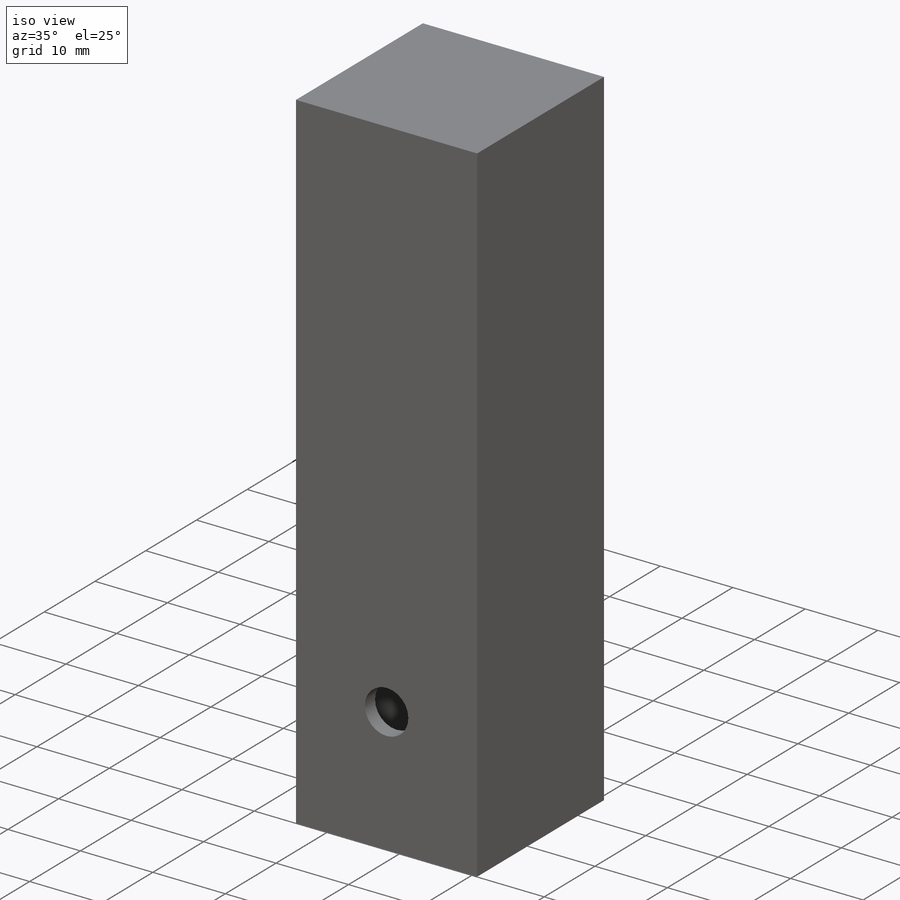
[diagram: iso view]
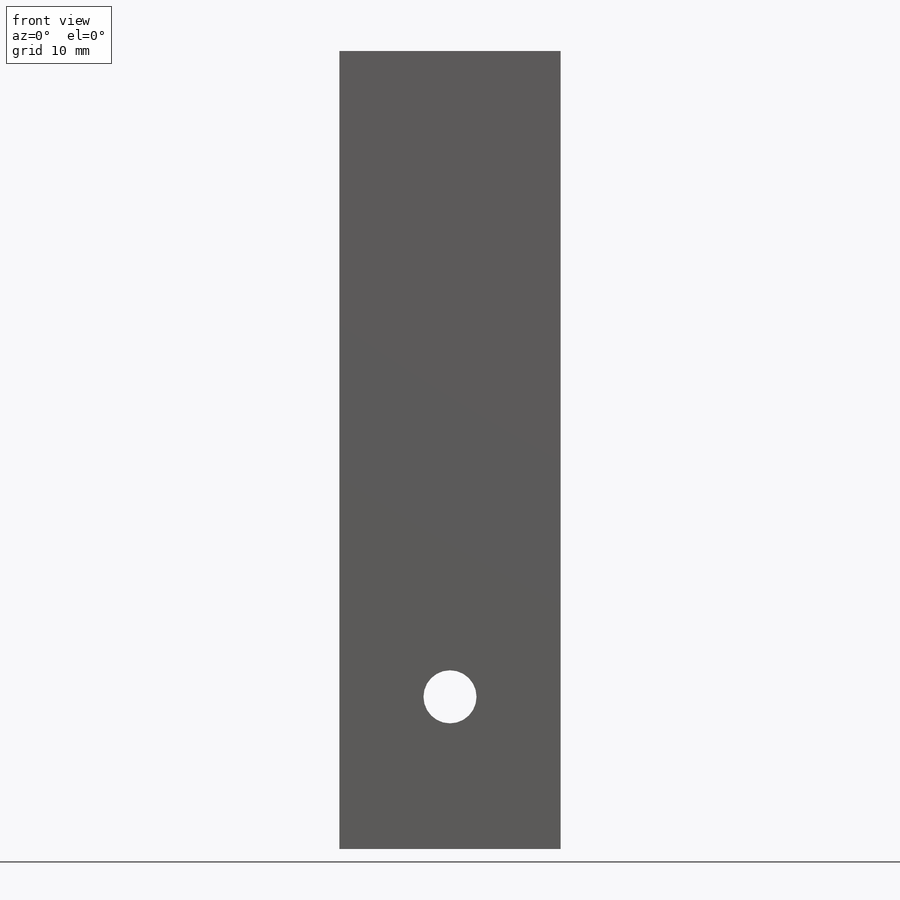
[diagram: front view]
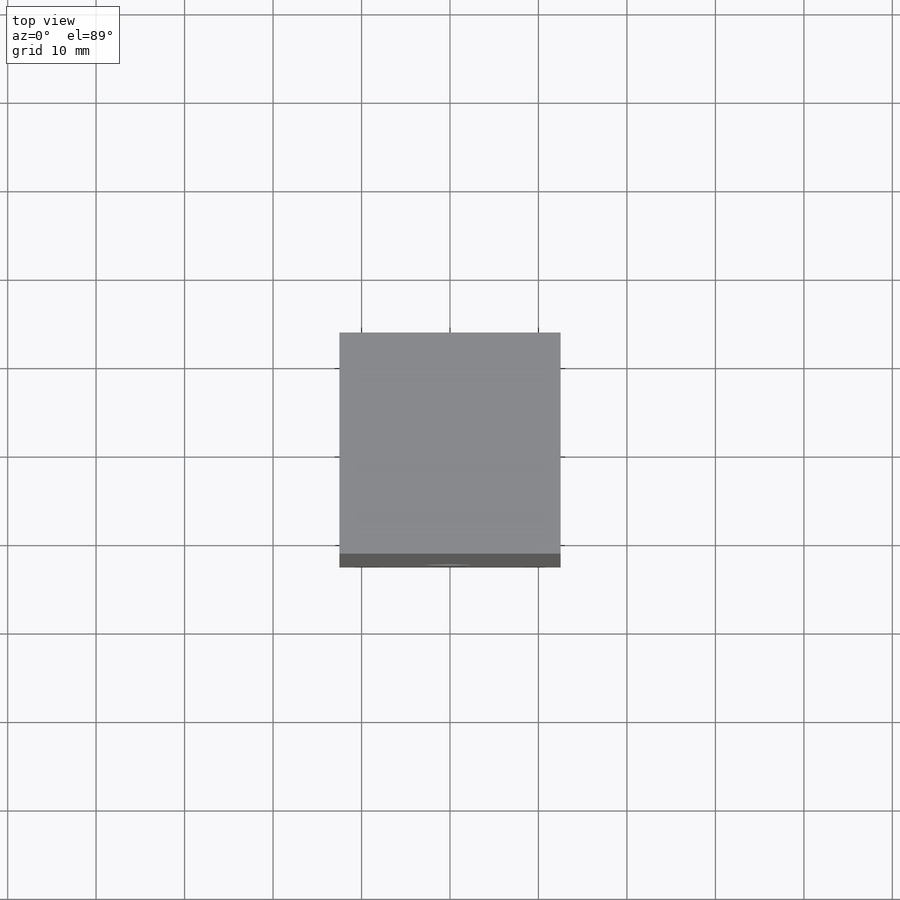
[diagram: top view]
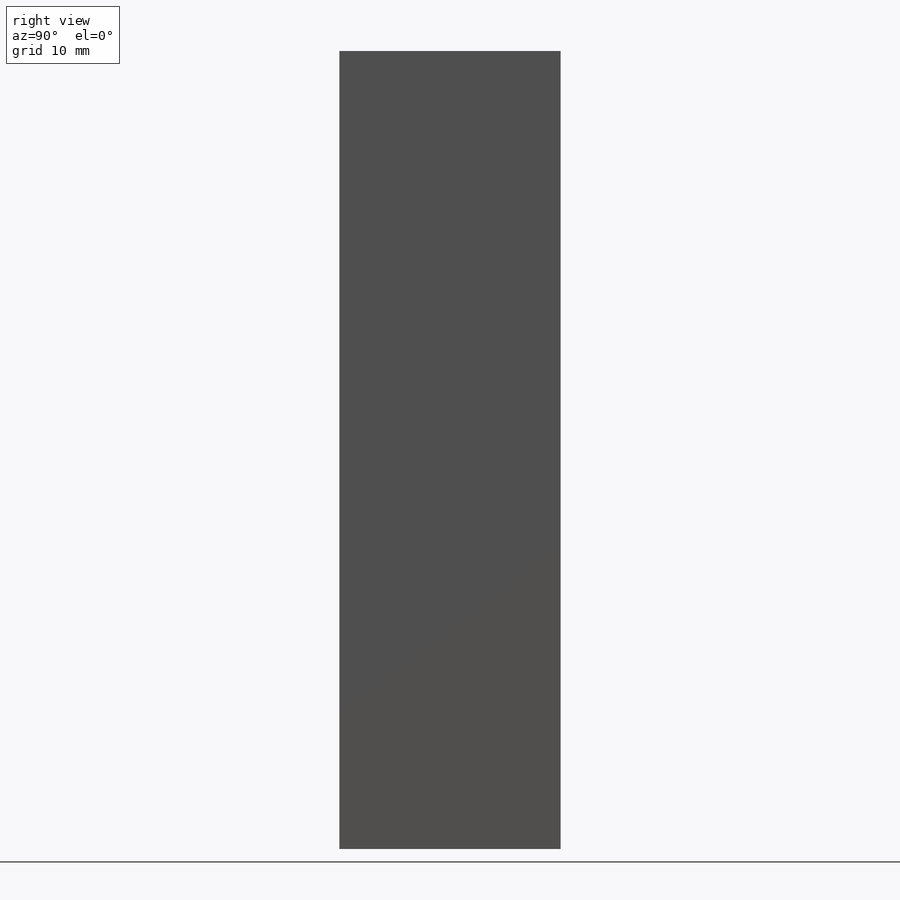
[diagram: right view]
SOLIDWORKS PART (.sldprt)
format: sldprt  version: not decoded by parser v0  size: 167,936 bytes
history: native  units: mm
features: sketch x6, cut_extrude x2, material x1, extrude x1, shell x1, hole x1 (+13 scaffold rows collapsed)
feature tree (25):
  scaffold x13  (default folders/planes/origin — collapsed)
  material  "Material <not specified>"
  sketch  "Sketch1"  dims[D1=25.0mm]
  extrude  "Boss-Extrude1"  Depth=120mm
  shell  "Shell1"  Thickness=2mm
  hole  "Ø6.0 (6) Diameter Hole1"  Diameter=6mm Depth=25mm
  sketch  "Sketch3"  dims[D1=47.0mm D2=15.0mm]
  sketch  "Sketch2"  dims[hole-wizard template sketch: 60 standard entries collapsed; hole parameters kept: c18.Thru Hole Depth=25.0mm]
  sketch  "Sketch4"
  sketch  "Sketch6"
  cut_extrude  "Cut-Extrude1"  Depth=48.26mm
  cut_extrude  "Cut-Extrude2"  [1 undecoded]
  sketch  "Sketch6<2>"  dims[D1=48.26mm D2=48.26mm]
decode coverage: 8 of 11 modeling features carry decoded parameters
note: ~ marks probable driven/reference dimensions
note: 1 parameter value undecoded
note: suppression state not decoded; provenance and decode notes live in map.json
